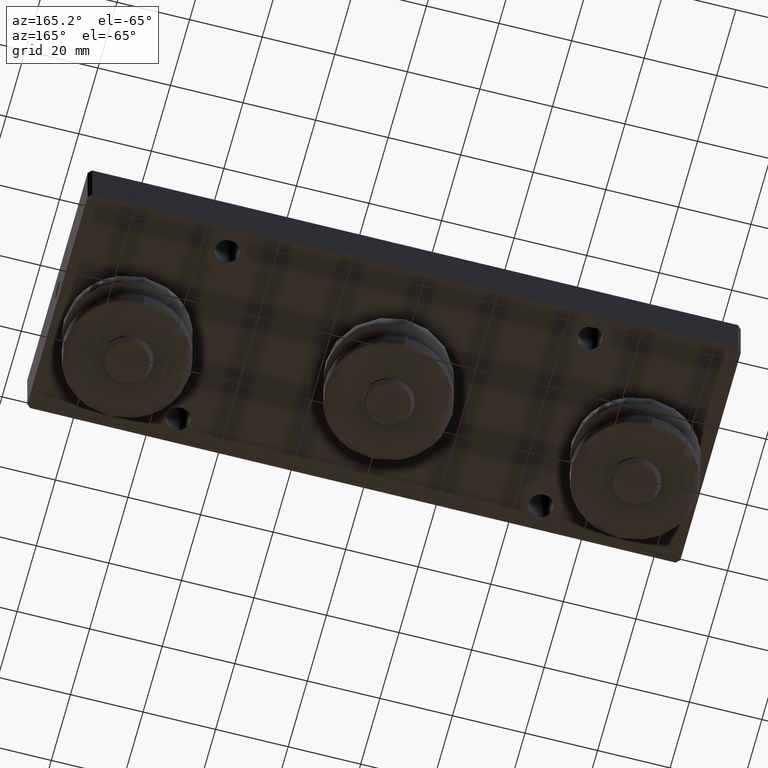
[diagram: clean part render]
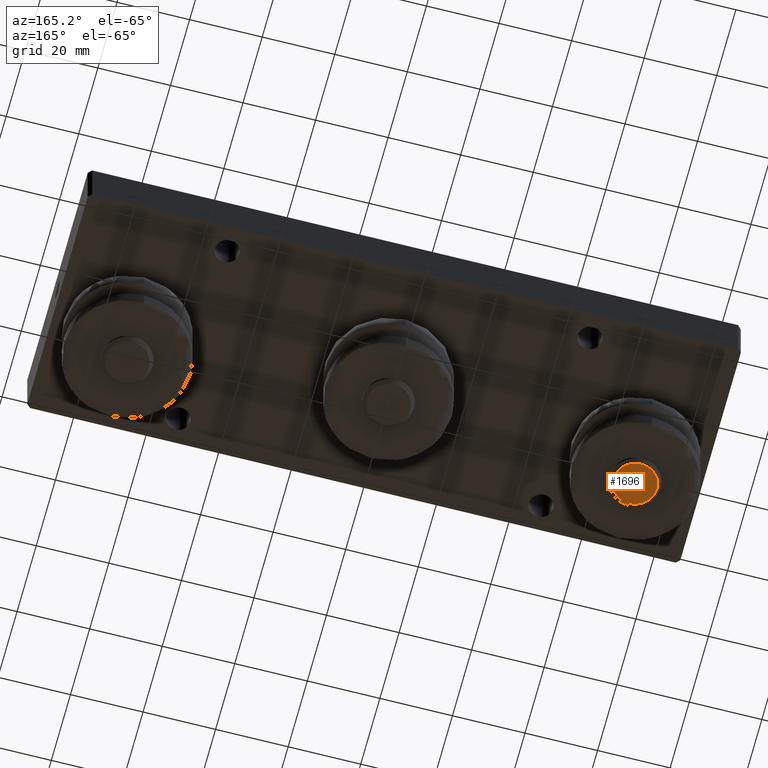
[diagram: same view with one face highlighted and labeled with its STEP entity id]
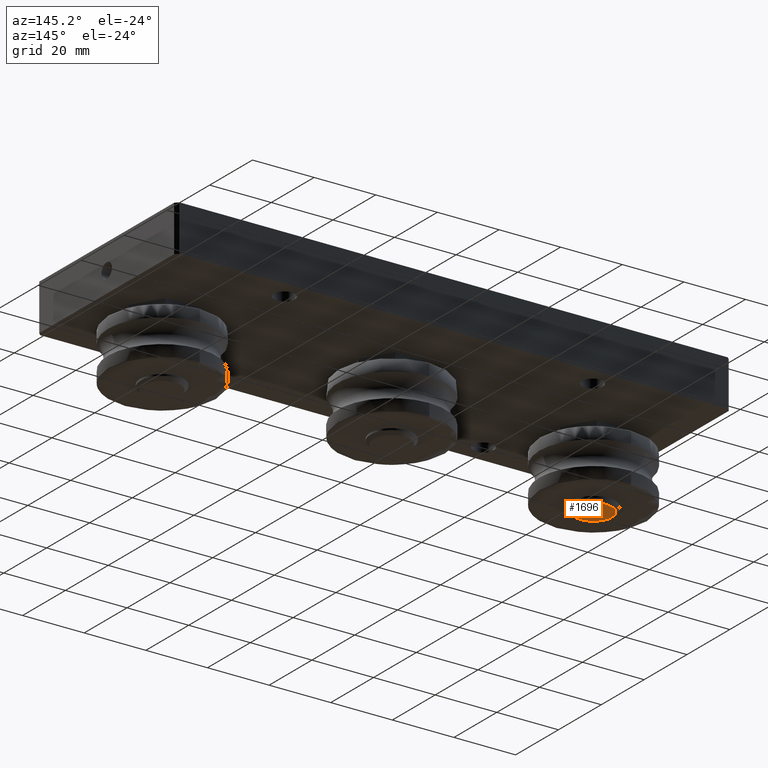
[diagram: same view with one face highlighted and labeled with its STEP entity id]
A machine part, auxiliary view. The second image highlights one B-rep face of the part: STEP entity #1696.
A second angle (auxiliary view) of the same face is appended — the face is thin or edge-on in the first view.
In plain terms, the highlighted planar face has unit normal (0, -0, -1).
Its self-contained STEP definition (entity closure, byte-faithful):
#272=CIRCLE('',#2027,5.99999999999975);
#377=FACE_OUTER_BOUND('',#506,.T.);
#506=EDGE_LOOP('',(#1457));
#859=VERTEX_POINT('',#3334);
#1058=EDGE_CURVE('',#859,#859,#272,.T.);
#1457=ORIENTED_EDGE('',*,*,#1058,.F.);
#1602=PLANE('',#2030);
#1696=ADVANCED_FACE('',(#377),#1602,.T.);
#2027=AXIS2_PLACEMENT_3D('',#3335,#2469,#2470);
#2030=AXIS2_PLACEMENT_3D('',#3341,#2477,#2478);
#2469=DIRECTION('center_axis',(0.,1.63551297779561E-14,1.));
#2470=DIRECTION('ref_axis',(1.,0.,0.));
#2477=DIRECTION('center_axis',(0.,-1.63551297779561E-14,-1.));
#2478=DIRECTION('ref_axis',(-1.,0.,0.));
#3334=CARTESIAN_POINT('',(-5.99999999999975,-5.22463427998256E-13,-31.9000000001203));
#3335=CARTESIAN_POINT('Origin',(0.,-5.21728639918767E-13,-31.9000000001203));
#3341=CARTESIAN_POINT('Origin',(3.35776545337211E-16,-5.21709101539466E-13,
-31.9000000001203));